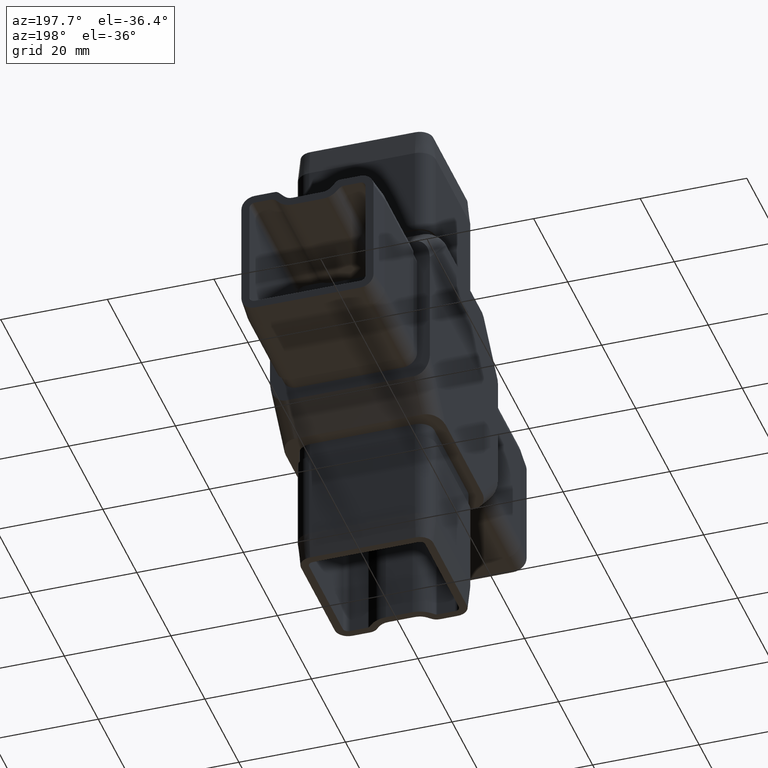
[diagram: clean part render]
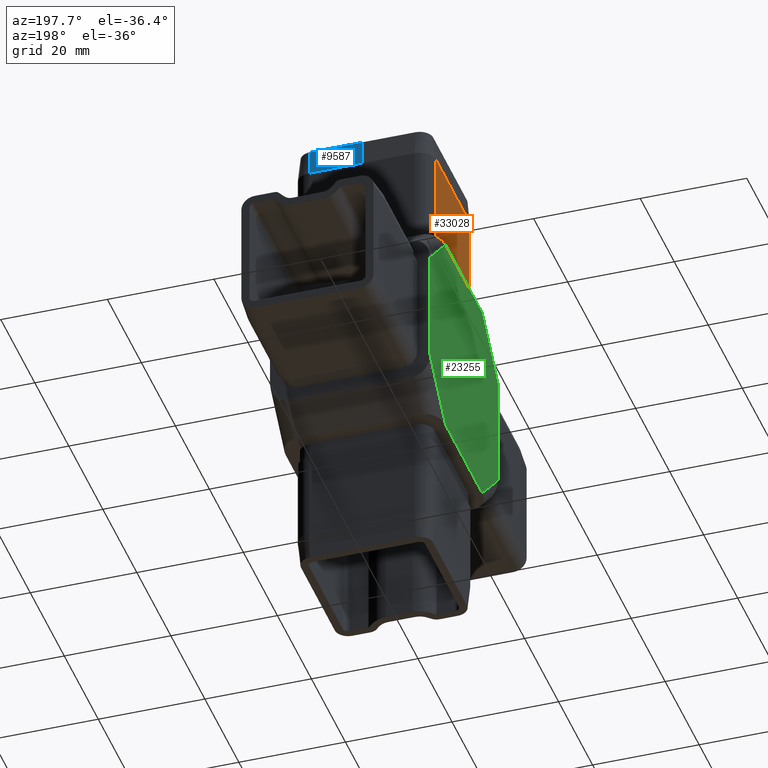
[diagram: same view with three faces highlighted in distinct colors, each labeled with its STEP entity id]
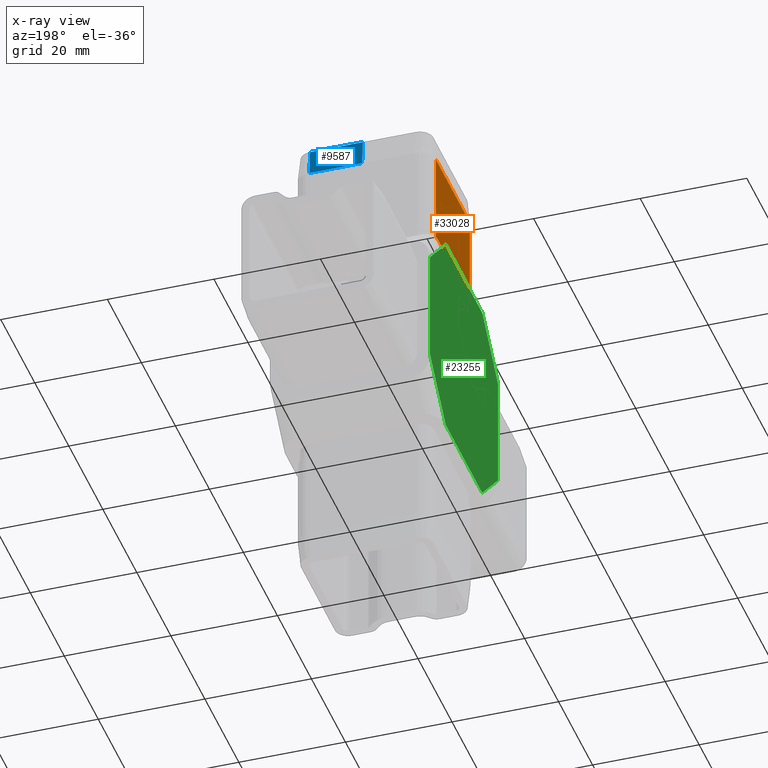
[diagram: x-ray of the same camera — body ghosted, the three highlighted faces saturated]
A machine part, auxiliary view with three faces highlighted in distinct colors.
The next image is the same camera in x-ray (body ghosted, the three faces saturated) — at least one of them is partly hidden behind the body in this view.
Their STEP definitions:

[orange] entity #33028 — the highlighted planar face has unit normal (1, -0, 0).
#323 = CARTESIAN_POINT ( 'NONE',  ( -12.89999999999999300, -9.899999999999998600, 23.00000000000000000 ) ) ;
#1192 = CARTESIAN_POINT ( 'NONE',  ( -12.89999999999999000, -9.899999999999995000, 40.00000000000000000 ) ) ;
#1552 = VERTEX_POINT ( 'NONE', #26534 ) ;
#2196 = LINE ( 'NONE', #13406, #2631 ) ;
#2488 = CARTESIAN_POINT ( 'NONE',  ( -12.89999999999999300, -9.899999999999998600, 23.00000000000000000 ) ) ;
#2543 = CARTESIAN_POINT ( 'NONE',  ( -12.89999999999999000, 9.899999999999995000, 40.00000000000000000 ) ) ;
#2631 = VECTOR ( 'NONE', #2882, 1000.000000000000000 ) ;
#2882 = DIRECTION ( 'NONE',  ( -0.0000000000000000000, -0.0000000000000000000, -1.000000000000000000 ) ) ;
#4048 = DIRECTION ( 'NONE',  ( 8.761229676650544600E-017, 1.000000000000000000, 0.0000000000000000000 ) ) ;
#4398 = VECTOR ( 'NONE', #24741, 1000.000000000000000 ) ;
#4976 = DIRECTION ( 'NONE',  ( 0.0000000000000000000, 1.000000000000000000, 0.0000000000000000000 ) ) ;
#7779 = EDGE_LOOP ( 'NONE', ( #12692, #17025, #9142, #31838 ) ) ;
#9142 = ORIENTED_EDGE ( 'NONE', *, *, #9167, .T. ) ;
#9167 = EDGE_CURVE ( 'NONE', #21820, #1552, #22187, .T. ) ;
#10165 = CARTESIAN_POINT ( 'NONE',  ( -12.89999999999999000, -9.899999999999995000, 40.00000000000000000 ) ) ;
#12055 = DIRECTION ( 'NONE',  ( 1.000000000000000000, -8.761229676650544600E-017, 0.0000000000000000000 ) ) ;
#12692 = ORIENTED_EDGE ( 'NONE', *, *, #18494, .F. ) ;
#13406 = CARTESIAN_POINT ( 'NONE',  ( -12.89999999999999900, -9.899999999999998600, 45.00000000000000000 ) ) ;
#15099 = AXIS2_PLACEMENT_3D ( 'NONE', #29992, #12055, #4048 ) ;
#16650 = DIRECTION ( 'NONE',  ( 0.0000000000000000000, 1.000000000000000000, 0.0000000000000000000 ) ) ;
#17025 = ORIENTED_EDGE ( 'NONE', *, *, #27826, .T. ) ;
#17789 = FACE_OUTER_BOUND ( 'NONE', #7779, .T. ) ;
#18494 = EDGE_CURVE ( 'NONE', #29219, #25958, #2196, .T. ) ;
#18624 = VECTOR ( 'NONE', #16650, 1000.000000000000000 ) ;
#21801 = LINE ( 'NONE', #2488, #24218 ) ;
#21820 = VERTEX_POINT ( 'NONE', #2543 ) ;
#22187 = LINE ( 'NONE', #29910, #4398 ) ;
#22607 = LINE ( 'NONE', #1192, #18624 ) ;
#24218 = VECTOR ( 'NONE', #4976, 1000.000000000000000 ) ;
#24741 = DIRECTION ( 'NONE',  ( -0.0000000000000000000, -0.0000000000000000000, -1.000000000000000000 ) ) ;
#25958 = VERTEX_POINT ( 'NONE', #323 ) ;
#26534 = CARTESIAN_POINT ( 'NONE',  ( -12.89999999999999300, 9.899999999999991500, 23.00000000000000000 ) ) ;
#27826 = EDGE_CURVE ( 'NONE', #29219, #21820, #22607, .T. ) ;
#28849 = EDGE_CURVE ( 'NONE', #25958, #1552, #21801, .T. ) ;
#29219 = VERTEX_POINT ( 'NONE', #10165 ) ;
#29910 = CARTESIAN_POINT ( 'NONE',  ( -12.89999999999999700, 9.899999999999991500, 45.00000000000000000 ) ) ;
#29992 = CARTESIAN_POINT ( 'NONE',  ( -12.89999999999999900, -9.899999999999998600, 45.00000000000000000 ) ) ;
#31838 = ORIENTED_EDGE ( 'NONE', *, *, #28849, .F. ) ;
#32474 = PLANE ( 'NONE',  #15099 ) ;
#33028 = ADVANCED_FACE ( 'NONE', ( #17789 ), #32474, .F. ) ;

[blue] entity #9587 — the highlighted planar face has unit normal (-0, 0.995, 0.0995).
#121 = B_SPLINE_CURVE_WITH_KNOTS ( 'NONE', 3,
 ( #4757, #27987, #13022, #15150 ),
 .UNSPECIFIED., .F., .F.,
 ( 4, 4 ),
 ( 0.0000000000000000000, 1.000000000000000000 ),
 .UNSPECIFIED. ) ;
#403 = VERTEX_POINT ( 'NONE', #5923 ) ;
#1382 = ORIENTED_EDGE ( 'NONE', *, *, #3356, .T. ) ;
#2340 = CARTESIAN_POINT ( 'NONE',  ( 9.899999999999998600, 12.39999999999999100, 45.00000000000000000 ) ) ;
#3356 = EDGE_CURVE ( 'NONE', #29294, #28987, #25078, .T. ) ;
#3824 = CARTESIAN_POINT ( 'NONE',  ( 9.899999999999998600, 12.39999999999999100, 45.00000000000000000 ) ) ;
#4757 = CARTESIAN_POINT ( 'NONE',  ( -3.469446951953614200E-015, 12.39999999999999100, 45.00000000000000000 ) ) ;
#5923 = CARTESIAN_POINT ( 'NONE',  ( -3.469446951953614200E-015, 12.39999999999999100, 45.00000000000000000 ) ) ;
#7719 = VECTOR ( 'NONE', #33047, 1000.000000000000200 ) ;
#9587 = ADVANCED_FACE ( 'NONE', ( #11692 ), #16365, .T. ) ;
#9741 = CARTESIAN_POINT ( 'NONE',  ( 3.469446951953614200E-015, 12.89999999999998100, 40.00000000000000000 ) ) ;
#10105 = EDGE_CURVE ( 'NONE', #403, #18782, #121, .T. ) ;
#10313 = CARTESIAN_POINT ( 'NONE',  ( 9.899999999999998600, 12.89999999999999100, 40.00000000000000000 ) ) ;
#11692 = FACE_OUTER_BOUND ( 'NONE', #11972, .T. ) ;
#11972 = EDGE_LOOP ( 'NONE', ( #26069, #21207, #1382, #12139 ) ) ;
#12139 = ORIENTED_EDGE ( 'NONE', *, *, #17378, .T. ) ;
#13022 = CARTESIAN_POINT ( 'NONE',  ( 6.938893903907228400E-015, 12.73333333333331500, 41.66666666666666400 ) ) ;
#14540 = VECTOR ( 'NONE', #30673, 1000.000000000000000 ) ;
#15150 = CARTESIAN_POINT ( 'NONE',  ( 3.469446951953614200E-015, 12.89999999999998100, 40.00000000000000000 ) ) ;
#15325 = CARTESIAN_POINT ( 'NONE',  ( 9.899999999999998600, 12.89999999999999100, 40.00000000000000000 ) ) ;
#16365 = PLANE ( 'NONE',  #29481 ) ;
#17195 = LINE ( 'NONE', #15325, #32536 ) ;
#17378 = EDGE_CURVE ( 'NONE', #28987, #18782, #17195, .T. ) ;
#18782 = VERTEX_POINT ( 'NONE', #9741 ) ;
#19291 = DIRECTION ( 'NONE',  ( 0.0000000000000000000, -0.09950371902099905400, 0.9950371902099890400 ) ) ;
#20530 = DIRECTION ( 'NONE',  ( -1.000000000000000000, -0.0000000000000000000, -0.0000000000000000000 ) ) ;
#21207 = ORIENTED_EDGE ( 'NONE', *, *, #26235, .F. ) ;
#21457 = LINE ( 'NONE', #30916, #14540 ) ;
#22920 = CARTESIAN_POINT ( 'NONE',  ( 9.899999999999998600, 12.39999999999999100, 45.00000000000000000 ) ) ;
#25078 = LINE ( 'NONE', #22920, #7719 ) ;
#26069 = ORIENTED_EDGE ( 'NONE', *, *, #10105, .F. ) ;
#26235 = EDGE_CURVE ( 'NONE', #29294, #403, #21457, .T. ) ;
#27987 = CARTESIAN_POINT ( 'NONE',  ( 6.938893903907228400E-015, 12.56666666666665000, 43.33333333333333600 ) ) ;
#28987 = VERTEX_POINT ( 'NONE', #10313 ) ;
#29294 = VERTEX_POINT ( 'NONE', #2340 ) ;
#29481 = AXIS2_PLACEMENT_3D ( 'NONE', #3824, #32140, #19291 ) ;
#30673 = DIRECTION ( 'NONE',  ( -1.000000000000000000, -0.0000000000000000000, -0.0000000000000000000 ) ) ;
#30916 = CARTESIAN_POINT ( 'NONE',  ( 9.899999999999998600, 12.39999999999999100, 45.00000000000000000 ) ) ;
#32140 = DIRECTION ( 'NONE',  ( -0.0000000000000000000, 0.9950371902099891500, 0.09950371902099906800 ) ) ;
#32536 = VECTOR ( 'NONE', #20530, 1000.000000000000000 ) ;
#33047 = DIRECTION ( 'NONE',  ( 0.0000000000000000000, 0.09950371902099905400, -0.9950371902099890400 ) ) ;

[green] entity #23255 — the highlighted planar face has unit normal (1, 0, -0).
#1772 = ORIENTED_EDGE ( 'NONE', *, *, #9480, .T. ) ;
#2287 = VERTEX_POINT ( 'NONE', #27630 ) ;
#2473 = EDGE_CURVE ( 'NONE', #4598, #2287, #23490, .T. ) ;
#2936 = DIRECTION ( 'NONE',  ( 1.301042606982605300E-016, -1.000000000000000000, 0.0000000000000000000 ) ) ;
#3231 = LINE ( 'NONE', #26989, #27417 ) ;
#3480 = ORIENTED_EDGE ( 'NONE', *, *, #2473, .F. ) ;
#3498 = DIRECTION ( 'NONE',  ( -9.199760500100262100E-017, 0.7071067811865489100, -0.7071067811865460200 ) ) ;
#3648 = VERTEX_POINT ( 'NONE', #6555 ) ;
#4598 = VERTEX_POINT ( 'NONE', #13704 ) ;
#5418 = ORIENTED_EDGE ( 'NONE', *, *, #7502, .T. ) ;
#6160 = DIRECTION ( 'NONE',  ( -1.301042606982605300E-016, 1.000000000000000000, 0.0000000000000000000 ) ) ;
#6290 = LINE ( 'NONE', #29755, #6673 ) ;
#6429 = DIRECTION ( 'NONE',  ( -0.0000000000000000000, -0.0000000000000000000, -1.000000000000000000 ) ) ;
#6555 = CARTESIAN_POINT ( 'NONE',  ( -14.99999999999999600, -10.75735931288073900, 20.00000000000000000 ) ) ;
#6673 = VECTOR ( 'NONE', #21996, 1000.000000000000100 ) ;
#6926 = VERTEX_POINT ( 'NONE', #16947 ) ;
#6945 = VERTEX_POINT ( 'NONE', #12094 ) ;
#7502 = EDGE_CURVE ( 'NONE', #32786, #25276, #18080, .T. ) ;
#8250 = CARTESIAN_POINT ( 'NONE',  ( -15.00000000000000000, 20.00000000000000400, -20.00000000000000000 ) ) ;
#9178 = EDGE_CURVE ( 'NONE', #26913, #2287, #3231, .T. ) ;
#9480 = EDGE_CURVE ( 'NONE', #25276, #26913, #17359, .T. ) ;
#9568 = LINE ( 'NONE', #28872, #12401 ) ;
#10533 = VECTOR ( 'NONE', #2936, 1000.000000000000000 ) ;
#11358 = PLANE ( 'NONE',  #30249 ) ;
#11540 = DIRECTION ( 'NONE',  ( 9.199760500100262100E-017, -0.7071067811865489100, 0.7071067811865460200 ) ) ;
#12094 = CARTESIAN_POINT ( 'NONE',  ( -15.00000000000000000, 20.00000000000000400, 10.75735931288073400 ) ) ;
#12401 = VECTOR ( 'NONE', #18152, 1000.000000000000000 ) ;
#13704 = CARTESIAN_POINT ( 'NONE',  ( -14.99999999999999500, -19.99999999999999600, 10.75735931288072000 ) ) ;
#13714 = VECTOR ( 'NONE', #3498, 1000.000000000000100 ) ;
#15275 = DIRECTION ( 'NONE',  ( -0.0000000000000000000, -0.0000000000000000000, -1.000000000000000000 ) ) ;
#15791 = VECTOR ( 'NONE', #15275, 1000.000000000000000 ) ;
#15876 = FACE_OUTER_BOUND ( 'NONE', #19085, .T. ) ;
#16450 = DIRECTION ( 'NONE',  ( 9.199760500100223900E-017, -0.7071067811865460200, -0.7071067811865489100 ) ) ;
#16947 = CARTESIAN_POINT ( 'NONE',  ( -14.99999999999999800, 10.75735931288069800, 20.00000000000000000 ) ) ;
#17359 = LINE ( 'NONE', #8250, #10533 ) ;
#18025 = ORIENTED_EDGE ( 'NONE', *, *, #20151, .F. ) ;
#18080 = LINE ( 'NONE', #29108, #19322 ) ;
#18126 = EDGE_CURVE ( 'NONE', #4598, #3648, #6290, .T. ) ;
#18152 = DIRECTION ( 'NONE',  ( 1.301042606982605300E-016, -1.000000000000000000, 0.0000000000000000000 ) ) ;
#18744 = ORIENTED_EDGE ( 'NONE', *, *, #22436, .T. ) ;
#18762 = CARTESIAN_POINT ( 'NONE',  ( -15.00000000000000000, 20.00000000000000400, -10.75735931288068800 ) ) ;
#19085 = EDGE_LOOP ( 'NONE', ( #18744, #5418, #1772, #24509, #3480, #27201, #18025, #19111 ) ) ;
#19111 = ORIENTED_EDGE ( 'NONE', *, *, #29392, .T. ) ;
#19322 = VECTOR ( 'NONE', #16450, 1000.000000000000100 ) ;
#20151 = EDGE_CURVE ( 'NONE', #6926, #3648, #9568, .T. ) ;
#21662 = DIRECTION ( 'NONE',  ( 1.000000000000000000, 1.301042606982605300E-016, -0.0000000000000000000 ) ) ;
#21996 = DIRECTION ( 'NONE',  ( -9.199760500100232500E-017, 0.7071067811865465700, 0.7071067811865484600 ) ) ;
#22436 = EDGE_CURVE ( 'NONE', #6945, #32786, #32464, .T. ) ;
#23255 = ADVANCED_FACE ( 'NONE', ( #15876 ), #11358, .F. ) ;
#23490 = LINE ( 'NONE', #30731, #15791 ) ;
#23626 = VECTOR ( 'NONE', #6429, 1000.000000000000000 ) ;
#24332 = CARTESIAN_POINT ( 'NONE',  ( -15.00000000000000000, 20.00000000000000400, 20.00000000000000000 ) ) ;
#24509 = ORIENTED_EDGE ( 'NONE', *, *, #9178, .T. ) ;
#25276 = VERTEX_POINT ( 'NONE', #31215 ) ;
#26913 = VERTEX_POINT ( 'NONE', #30022 ) ;
#26989 = CARTESIAN_POINT ( 'NONE',  ( -14.99999999999999500, -17.87867965644035500, -12.87867965644036500 ) ) ;
#27201 = ORIENTED_EDGE ( 'NONE', *, *, #18126, .T. ) ;
#27417 = VECTOR ( 'NONE', #11540, 1000.000000000000100 ) ;
#27630 = CARTESIAN_POINT ( 'NONE',  ( -14.99999999999999500, -19.99999999999999600, -10.75735931288073200 ) ) ;
#27769 = LINE ( 'NONE', #31597, #13714 ) ;
#28872 = CARTESIAN_POINT ( 'NONE',  ( -15.00000000000000000, 20.00000000000000400, 20.00000000000000000 ) ) ;
#29108 = CARTESIAN_POINT ( 'NONE',  ( -14.99999999999999800, 12.87867965644036500, -17.87867965644035800 ) ) ;
#29392 = EDGE_CURVE ( 'NONE', #6926, #6945, #27769, .T. ) ;
#29454 = CARTESIAN_POINT ( 'NONE',  ( -15.00000000000000000, 20.00000000000000400, 20.00000000000000000 ) ) ;
#29755 = CARTESIAN_POINT ( 'NONE',  ( -14.99999999999999600, -12.87867965644036500, 17.87867965644036900 ) ) ;
#30022 = CARTESIAN_POINT ( 'NONE',  ( -14.99999999999999600, -10.75735931288068800, -20.00000000000000000 ) ) ;
#30249 = AXIS2_PLACEMENT_3D ( 'NONE', #24332, #21662, #6160 ) ;
#30731 = CARTESIAN_POINT ( 'NONE',  ( -14.99999999999999500, -19.99999999999999600, 20.00000000000000000 ) ) ;
#31215 = CARTESIAN_POINT ( 'NONE',  ( -14.99999999999999800, 10.75735931288073000, -20.00000000000000000 ) ) ;
#31597 = CARTESIAN_POINT ( 'NONE',  ( -15.00000000000000000, 17.87867965644036500, 12.87867965644036300 ) ) ;
#32464 = LINE ( 'NONE', #29454, #23626 ) ;
#32786 = VERTEX_POINT ( 'NONE', #18762 ) ;